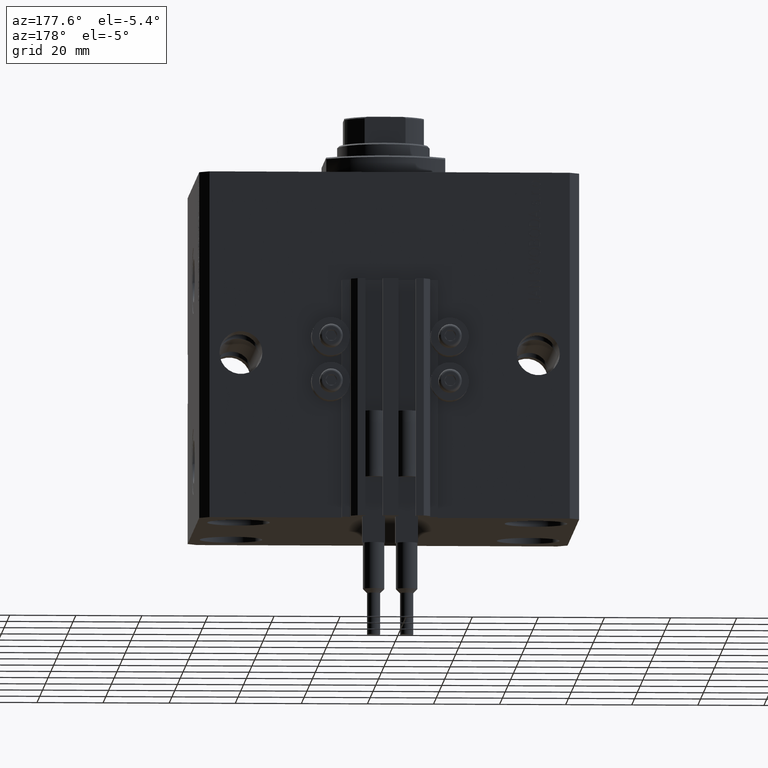
[diagram: clean part render]
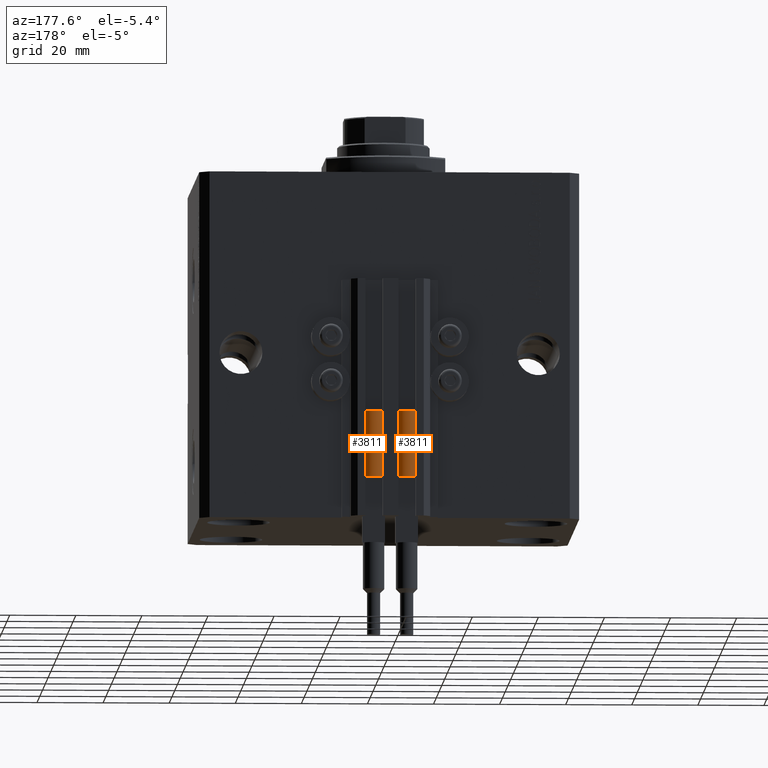
[diagram: same view with one multi-face feature highlighted, each face labeled with its STEP entity id]
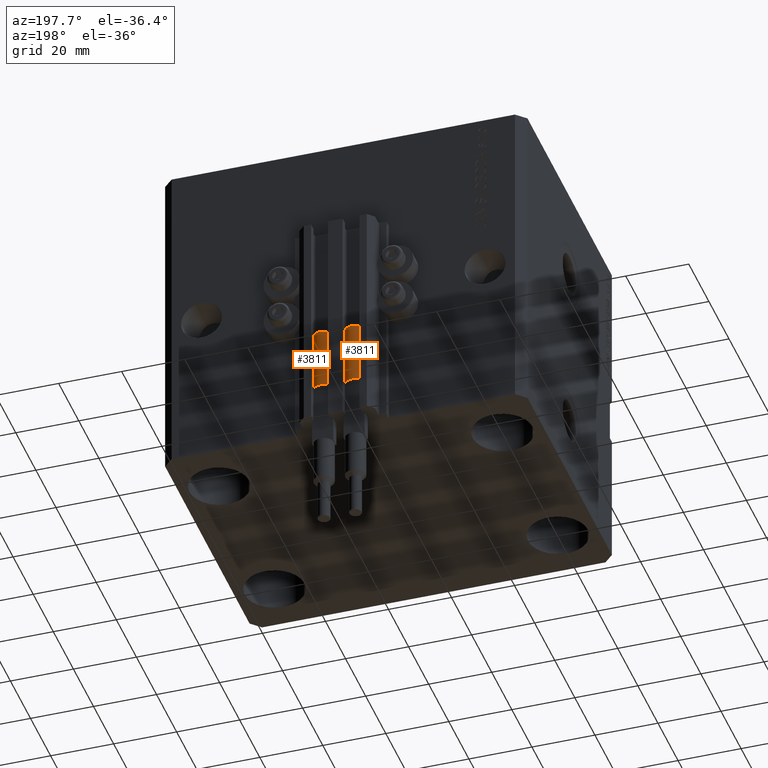
[diagram: same view with one multi-face feature highlighted, each face labeled with its STEP entity id]
A machine part, auxiliary view. The highlighted faces form ONE feature: a constant-radius fillet chain: 2 tangent blend faces with common blend radius 3.4 mm. The faces share edges in the B-rep.
A second angle (auxiliary view) of the same feature is appended — it is thin or edge-on in the first view.
Their STEP definitions:
[1] entity #3811 (Cylinder):
#50 = VERTEX_POINT ( 'NONE', #35015 ) ;
#2406 = DIRECTION ( 'NONE',  ( -0.000000000000000000, -0.000000000000000000, -1.000000000000000000 ) ) ;
#3811 = ADVANCED_FACE ( 'NONE', ( #22674 ), #30260, .T. ) ;
#4127 = DIRECTION ( 'NONE',  ( 0.000000000000000000, 0.000000000000000000, 1.000000000000000000 ) ) ;
#5997 = ORIENTED_EDGE ( 'NONE', *, *, #7556, .F. ) ;
#6309 = DIRECTION ( 'NONE',  ( 1.000000000000000000, 0.000000000000000000, 0.000000000000000000 ) ) ;
#7556 = EDGE_CURVE ( 'NONE', #22776, #44917, #48823, .T. ) ;
#7776 = EDGE_CURVE ( 'NONE', #50, #47787, #26987, .T. ) ;
#8209 = CIRCLE ( 'NONE', #45390, 3.400000000000000355 ) ;
#8318 = EDGE_CURVE ( 'NONE', #44917, #27808, #40768, .T. ) ;
#8442 = ORIENTED_EDGE ( 'NONE', *, *, #49783, .T. ) ;
#9941 = CARTESIAN_POINT ( 'NONE',  ( -3.399999999999999467, -4.915049848600952119E-16, 20.00000000000000000 ) ) ;
#11047 = LINE ( 'NONE', #45968, #30906 ) ;
#12480 = AXIS2_PLACEMENT_3D ( 'NONE', #46548, #49597, #26563 ) ;
#12822 = CARTESIAN_POINT ( 'NONE',  ( 0.000000000000000000, 0.000000000000000000, 0.000000000000000000 ) ) ;
#14091 = DIRECTION ( 'NONE',  ( -0.000000000000000000, -0.000000000000000000, -1.000000000000000000 ) ) ;
#15540 = VECTOR ( 'NONE', #2406, 1000.000000000000000 ) ;
#16641 = CARTESIAN_POINT ( 'NONE',  ( -3.051229260478471428, 1.500000000000000000, 20.00000000000000000 ) ) ;
#17926 = AXIS2_PLACEMENT_3D ( 'NONE', #18882, #37618, #34057 ) ;
#18882 = CARTESIAN_POINT ( 'NONE',  ( 0.000000000000000000, 0.000000000000000000, 20.00000000000000000 ) ) ;
#19054 = DIRECTION ( 'NONE',  ( 1.000000000000000000, 0.000000000000000000, 0.000000000000000000 ) ) ;
#20534 = AXIS2_PLACEMENT_3D ( 'NONE', #25763, #44500, #6309 ) ;
#21686 = ORIENTED_EDGE ( 'NONE', *, *, #26526, .F. ) ;
#22674 = FACE_OUTER_BOUND ( 'NONE', #30887, .T. ) ;
#22776 = VERTEX_POINT ( 'NONE', #23404 ) ;
#23404 = CARTESIAN_POINT ( 'NONE',  ( 3.051229260478471428, 1.500000000000000000, 20.00000000000000000 ) ) ;
#25763 = CARTESIAN_POINT ( 'NONE',  ( 0.000000000000000000, 0.000000000000000000, 20.00000000000000000 ) ) ;
#26526 = EDGE_CURVE ( 'NONE', #27808, #47787, #11047, .T. ) ;
#26563 = DIRECTION ( 'NONE',  ( 1.000000000000000000, 0.000000000000000000, 0.000000000000000000 ) ) ;
#26987 = CIRCLE ( 'NONE', #35049, 3.400000000000000355 ) ;
#27132 = CARTESIAN_POINT ( 'NONE',  ( 0.000000000000000000, 0.000000000000000000, 20.00000000000000000 ) ) ;
#27808 = VERTEX_POINT ( 'NONE', #9941 ) ;
#29695 = LINE ( 'NONE', #40608, #15540 ) ;
#30260 = CYLINDRICAL_SURFACE ( 'NONE', #17926, 3.400000000000000355 ) ;
#30887 = EDGE_LOOP ( 'NONE', ( #44392, #8442, #31973, #21686, #34499, #5997 ) ) ;
#30906 = VECTOR ( 'NONE', #14091, 1000.000000000000000 ) ;
#31408 = VERTEX_POINT ( 'NONE', #48433 ) ;
#31973 = ORIENTED_EDGE ( 'NONE', *, *, #7776, .T. ) ;
#34057 = DIRECTION ( 'NONE',  ( -1.000000000000000000, 0.000000000000000000, 0.000000000000000000 ) ) ;
#34499 = ORIENTED_EDGE ( 'NONE', *, *, #8318, .F. ) ;
#35015 = CARTESIAN_POINT ( 'NONE',  ( 3.400000000000000355, 4.163799117101001052E-16, 0.000000000000000000 ) ) ;
#35049 = AXIS2_PLACEMENT_3D ( 'NONE', #12822, #39397, #35335 ) ;
#35335 = DIRECTION ( 'NONE',  ( 1.000000000000000000, 0.000000000000000000, 0.000000000000000000 ) ) ;
#35466 = CARTESIAN_POINT ( 'NONE',  ( -3.400000000000000355, 0.000000000000000000, 0.000000000000000000 ) ) ;
#37618 = DIRECTION ( 'NONE',  ( -0.000000000000000000, -0.000000000000000000, -1.000000000000000000 ) ) ;
#39397 = DIRECTION ( 'NONE',  ( 0.000000000000000000, 0.000000000000000000, 1.000000000000000000 ) ) ;
#40608 = CARTESIAN_POINT ( 'NONE',  ( 3.400000000000000355, 4.163799117101001052E-16, 20.00000000000000000 ) ) ;
#40768 = CIRCLE ( 'NONE', #12480, 3.400000000000000355 ) ;
#44392 = ORIENTED_EDGE ( 'NONE', *, *, #49078, .F. ) ;
#44500 = DIRECTION ( 'NONE',  ( 0.000000000000000000, 0.000000000000000000, 1.000000000000000000 ) ) ;
#44917 = VERTEX_POINT ( 'NONE', #16641 ) ;
#45390 = AXIS2_PLACEMENT_3D ( 'NONE', #27132, #4127, #19054 ) ;
#45968 = CARTESIAN_POINT ( 'NONE',  ( -3.400000000000000355, 0.000000000000000000, 20.00000000000000000 ) ) ;
#46548 = CARTESIAN_POINT ( 'NONE',  ( 0.000000000000000000, 0.000000000000000000, 20.00000000000000000 ) ) ;
#47787 = VERTEX_POINT ( 'NONE', #35466 ) ;
#48433 = CARTESIAN_POINT ( 'NONE',  ( 3.400000000000000355, 0.000000000000000000, 20.00000000000000000 ) ) ;
#48823 = CIRCLE ( 'NONE', #20534, 3.400000000000000355 ) ;
#49078 = EDGE_CURVE ( 'NONE', #31408, #22776, #8209, .T. ) ;
#49597 = DIRECTION ( 'NONE',  ( 0.000000000000000000, 0.000000000000000000, 1.000000000000000000 ) ) ;
#49783 = EDGE_CURVE ( 'NONE', #31408, #50, #29695, .T. ) ;
[2] entity #3811 (Cylinder):
#50 = VERTEX_POINT ( 'NONE', #35015 ) ;
#2406 = DIRECTION ( 'NONE',  ( -0.000000000000000000, -0.000000000000000000, -1.000000000000000000 ) ) ;
#3811 = ADVANCED_FACE ( 'NONE', ( #22674 ), #30260, .T. ) ;
#4127 = DIRECTION ( 'NONE',  ( 0.000000000000000000, 0.000000000000000000, 1.000000000000000000 ) ) ;
#5997 = ORIENTED_EDGE ( 'NONE', *, *, #7556, .F. ) ;
#6309 = DIRECTION ( 'NONE',  ( 1.000000000000000000, 0.000000000000000000, 0.000000000000000000 ) ) ;
#7556 = EDGE_CURVE ( 'NONE', #22776, #44917, #48823, .T. ) ;
#7776 = EDGE_CURVE ( 'NONE', #50, #47787, #26987, .T. ) ;
#8209 = CIRCLE ( 'NONE', #45390, 3.400000000000000355 ) ;
#8318 = EDGE_CURVE ( 'NONE', #44917, #27808, #40768, .T. ) ;
#8442 = ORIENTED_EDGE ( 'NONE', *, *, #49783, .T. ) ;
#9941 = CARTESIAN_POINT ( 'NONE',  ( -3.399999999999999467, -4.915049848600952119E-16, 20.00000000000000000 ) ) ;
#11047 = LINE ( 'NONE', #45968, #30906 ) ;
#12480 = AXIS2_PLACEMENT_3D ( 'NONE', #46548, #49597, #26563 ) ;
#12822 = CARTESIAN_POINT ( 'NONE',  ( 0.000000000000000000, 0.000000000000000000, 0.000000000000000000 ) ) ;
#14091 = DIRECTION ( 'NONE',  ( -0.000000000000000000, -0.000000000000000000, -1.000000000000000000 ) ) ;
#15540 = VECTOR ( 'NONE', #2406, 1000.000000000000000 ) ;
#16641 = CARTESIAN_POINT ( 'NONE',  ( -3.051229260478471428, 1.500000000000000000, 20.00000000000000000 ) ) ;
#17926 = AXIS2_PLACEMENT_3D ( 'NONE', #18882, #37618, #34057 ) ;
#18882 = CARTESIAN_POINT ( 'NONE',  ( 0.000000000000000000, 0.000000000000000000, 20.00000000000000000 ) ) ;
#19054 = DIRECTION ( 'NONE',  ( 1.000000000000000000, 0.000000000000000000, 0.000000000000000000 ) ) ;
#20534 = AXIS2_PLACEMENT_3D ( 'NONE', #25763, #44500, #6309 ) ;
#21686 = ORIENTED_EDGE ( 'NONE', *, *, #26526, .F. ) ;
#22674 = FACE_OUTER_BOUND ( 'NONE', #30887, .T. ) ;
#22776 = VERTEX_POINT ( 'NONE', #23404 ) ;
#23404 = CARTESIAN_POINT ( 'NONE',  ( 3.051229260478471428, 1.500000000000000000, 20.00000000000000000 ) ) ;
#25763 = CARTESIAN_POINT ( 'NONE',  ( 0.000000000000000000, 0.000000000000000000, 20.00000000000000000 ) ) ;
#26526 = EDGE_CURVE ( 'NONE', #27808, #47787, #11047, .T. ) ;
#26563 = DIRECTION ( 'NONE',  ( 1.000000000000000000, 0.000000000000000000, 0.000000000000000000 ) ) ;
#26987 = CIRCLE ( 'NONE', #35049, 3.400000000000000355 ) ;
#27132 = CARTESIAN_POINT ( 'NONE',  ( 0.000000000000000000, 0.000000000000000000, 20.00000000000000000 ) ) ;
#27808 = VERTEX_POINT ( 'NONE', #9941 ) ;
#29695 = LINE ( 'NONE', #40608, #15540 ) ;
#30260 = CYLINDRICAL_SURFACE ( 'NONE', #17926, 3.400000000000000355 ) ;
#30887 = EDGE_LOOP ( 'NONE', ( #44392, #8442, #31973, #21686, #34499, #5997 ) ) ;
#30906 = VECTOR ( 'NONE', #14091, 1000.000000000000000 ) ;
#31408 = VERTEX_POINT ( 'NONE', #48433 ) ;
#31973 = ORIENTED_EDGE ( 'NONE', *, *, #7776, .T. ) ;
#34057 = DIRECTION ( 'NONE',  ( -1.000000000000000000, 0.000000000000000000, 0.000000000000000000 ) ) ;
#34499 = ORIENTED_EDGE ( 'NONE', *, *, #8318, .F. ) ;
#35015 = CARTESIAN_POINT ( 'NONE',  ( 3.400000000000000355, 4.163799117101001052E-16, 0.000000000000000000 ) ) ;
#35049 = AXIS2_PLACEMENT_3D ( 'NONE', #12822, #39397, #35335 ) ;
#35335 = DIRECTION ( 'NONE',  ( 1.000000000000000000, 0.000000000000000000, 0.000000000000000000 ) ) ;
#35466 = CARTESIAN_POINT ( 'NONE',  ( -3.400000000000000355, 0.000000000000000000, 0.000000000000000000 ) ) ;
#37618 = DIRECTION ( 'NONE',  ( -0.000000000000000000, -0.000000000000000000, -1.000000000000000000 ) ) ;
#39397 = DIRECTION ( 'NONE',  ( 0.000000000000000000, 0.000000000000000000, 1.000000000000000000 ) ) ;
#40608 = CARTESIAN_POINT ( 'NONE',  ( 3.400000000000000355, 4.163799117101001052E-16, 20.00000000000000000 ) ) ;
#40768 = CIRCLE ( 'NONE', #12480, 3.400000000000000355 ) ;
#44392 = ORIENTED_EDGE ( 'NONE', *, *, #49078, .F. ) ;
#44500 = DIRECTION ( 'NONE',  ( 0.000000000000000000, 0.000000000000000000, 1.000000000000000000 ) ) ;
#44917 = VERTEX_POINT ( 'NONE', #16641 ) ;
#45390 = AXIS2_PLACEMENT_3D ( 'NONE', #27132, #4127, #19054 ) ;
#45968 = CARTESIAN_POINT ( 'NONE',  ( -3.400000000000000355, 0.000000000000000000, 20.00000000000000000 ) ) ;
#46548 = CARTESIAN_POINT ( 'NONE',  ( 0.000000000000000000, 0.000000000000000000, 20.00000000000000000 ) ) ;
#47787 = VERTEX_POINT ( 'NONE', #35466 ) ;
#48433 = CARTESIAN_POINT ( 'NONE',  ( 3.400000000000000355, 0.000000000000000000, 20.00000000000000000 ) ) ;
#48823 = CIRCLE ( 'NONE', #20534, 3.400000000000000355 ) ;
#49078 = EDGE_CURVE ( 'NONE', #31408, #22776, #8209, .T. ) ;
#49597 = DIRECTION ( 'NONE',  ( 0.000000000000000000, 0.000000000000000000, 1.000000000000000000 ) ) ;
#49783 = EDGE_CURVE ( 'NONE', #31408, #50, #29695, .T. ) ;